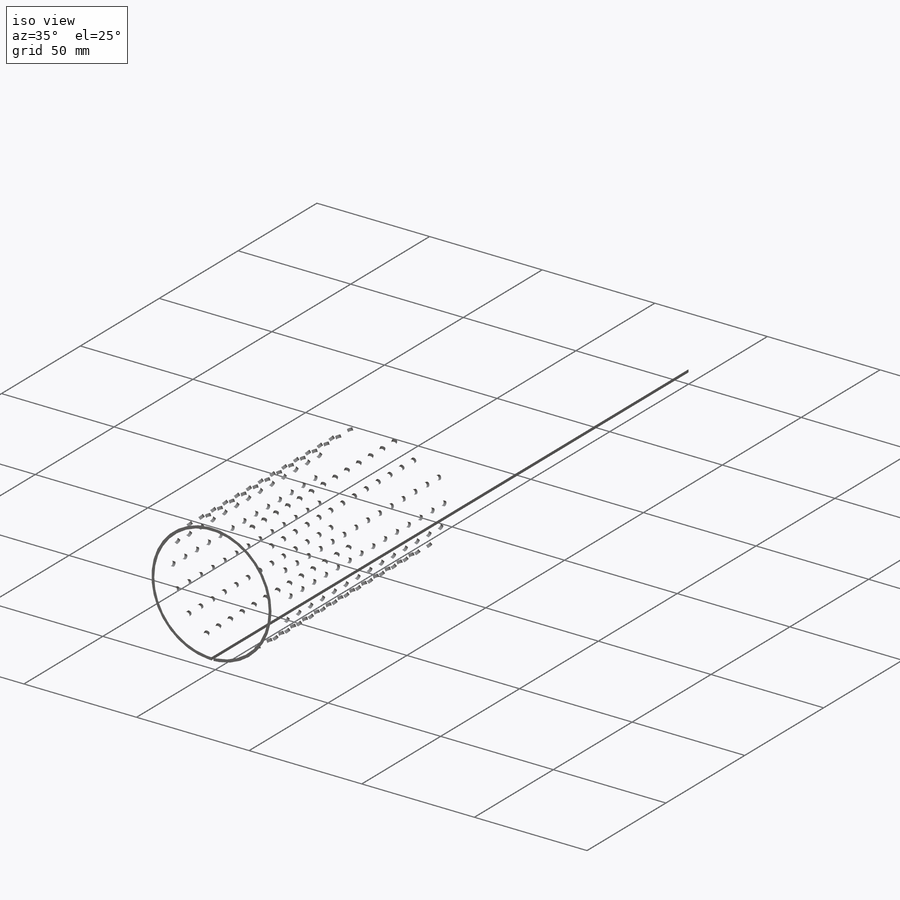
[diagram: iso view]
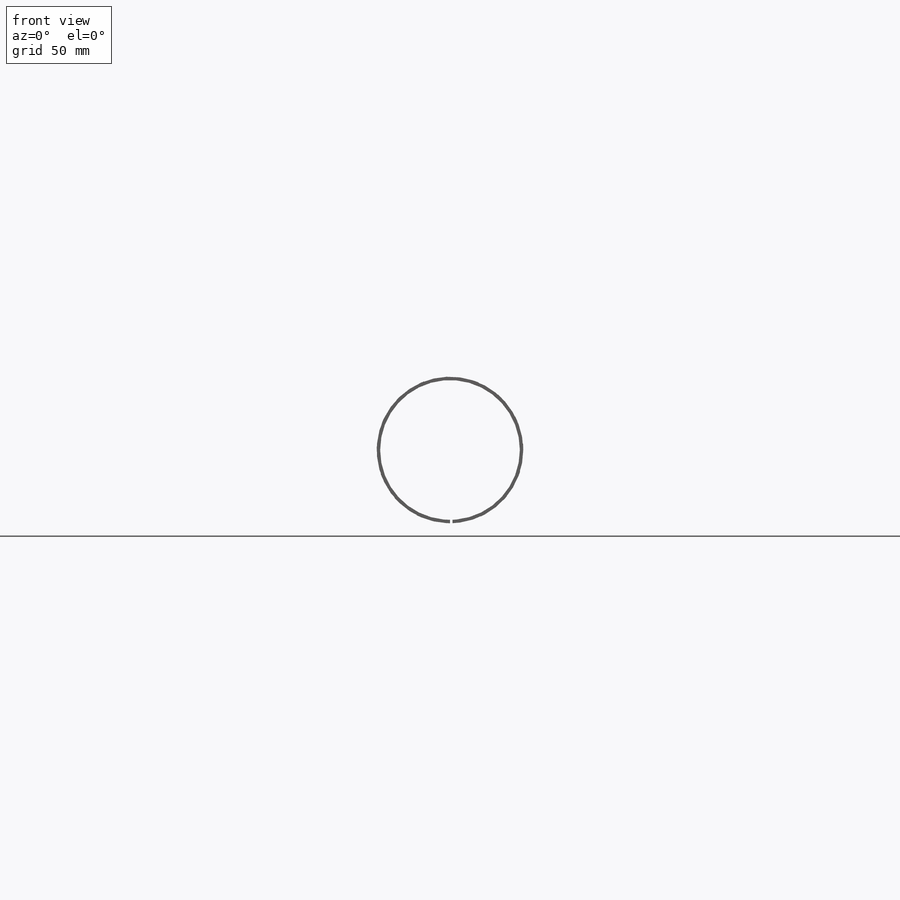
[diagram: front view]
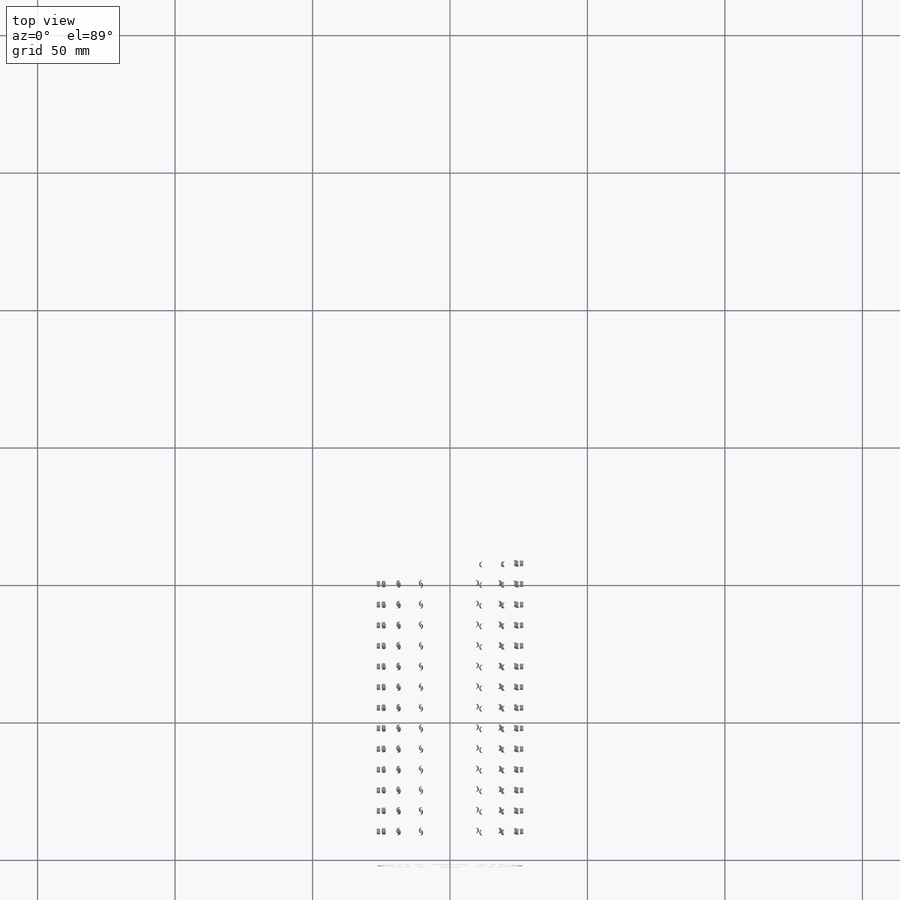
[diagram: top view]
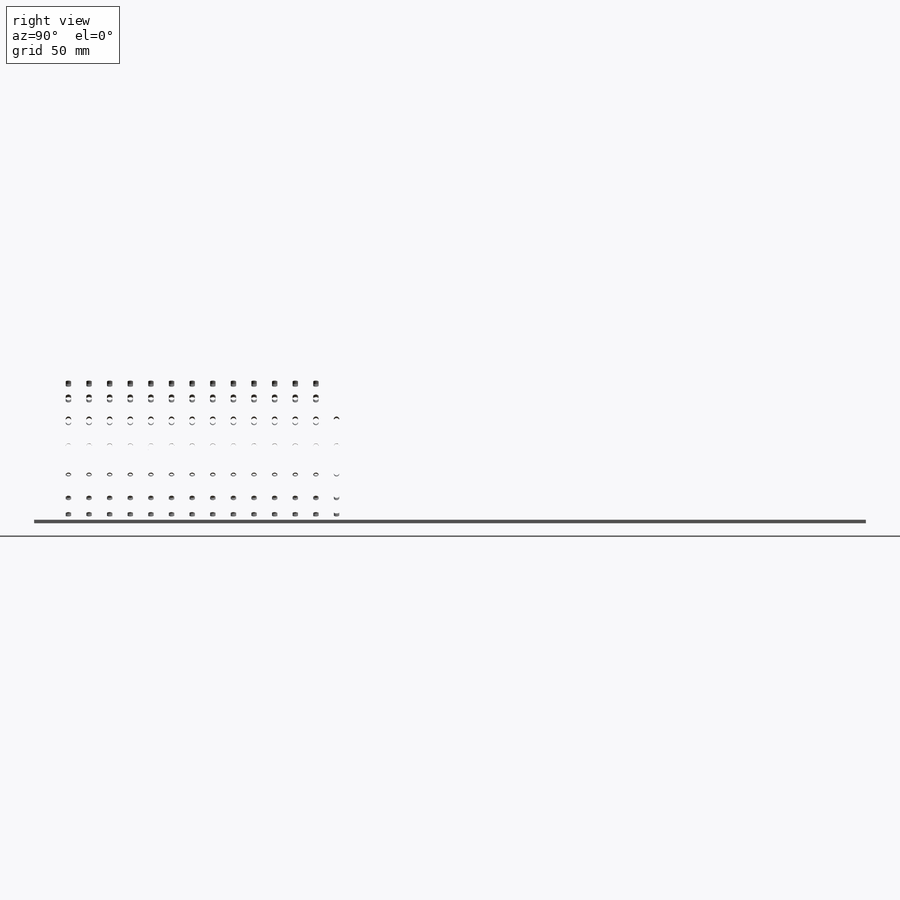
[diagram: right view]
SOLIDWORKS PART (.sldprt)
format: sldprt  version: not decoded by parser v0  size: 4,907,008 bytes
history: native  units: mm
features: sketch x5, pattern_linear x2, material x1, plane x1, sheet_metal_op x1, cut_extrude x1 + 1 further entry (+11 scaffold rows collapsed; 2 parser-record rows omitted)
feature tree (25):
  scaffold x11  (default folders/planes/origin — collapsed)
  material  "Plain Carbon Steel"
  sketch  "Sketch1"  dims[c1.D2=25.4mm c1.D1=~47.508619mm c2.D1=2.0deg]
  plane  "Plane1"  Offset=302.48mm
  sketch  "Sketch2"
  sheet_metal_op  "Sheet-Metal1"  Sheet-Metal2=0 Sheet-Metal3=0
  parser-record x2  (decoder bookkeeping rows leaked as tree rows — omitted from the tree; the rows remain in map.json)
  sketch  "Sketch6"  dims[D1=2.0mm D2=5.0mm]
  cut_extrude  "Cut-Extrude1"  [1 undecoded]
  pattern_linear  "LPattern1"  Count1=40 Count2=1 Spacing1=7.5mm Spacing2=10mm
  pattern_linear  "LPattern2"  Count1=8 Count2=8 Spacing1=10mm Spacing2=10mm
  "Flat-Pattern1"
  sketch  "Bend-Lines1"
  sketch  "Bounding-Box1"
decode coverage: 5 of 9 modeling features carry decoded parameters; 1 rows unclassified (native names shown)
note: ~ marks probable driven/reference dimensions
note: 1 parameter value undecoded
note: suppression state not decoded; provenance and decode notes live in map.json
